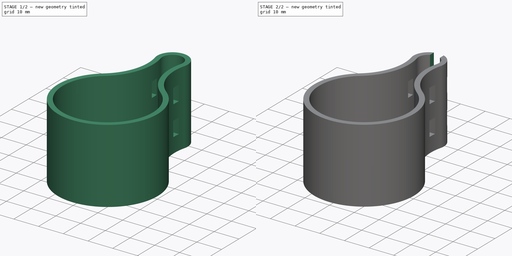
[diagram: build sequence overview — one tinted view per stage of 2, left to right]
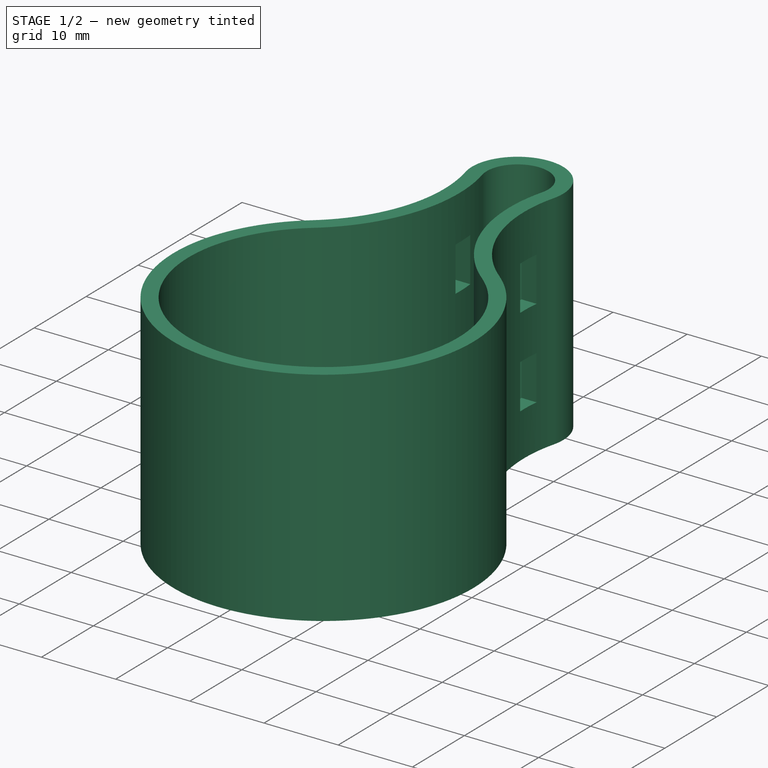
[diagram: stage 1 of 2 — iso view after this stage's code; geometry added in this stage tinted green]
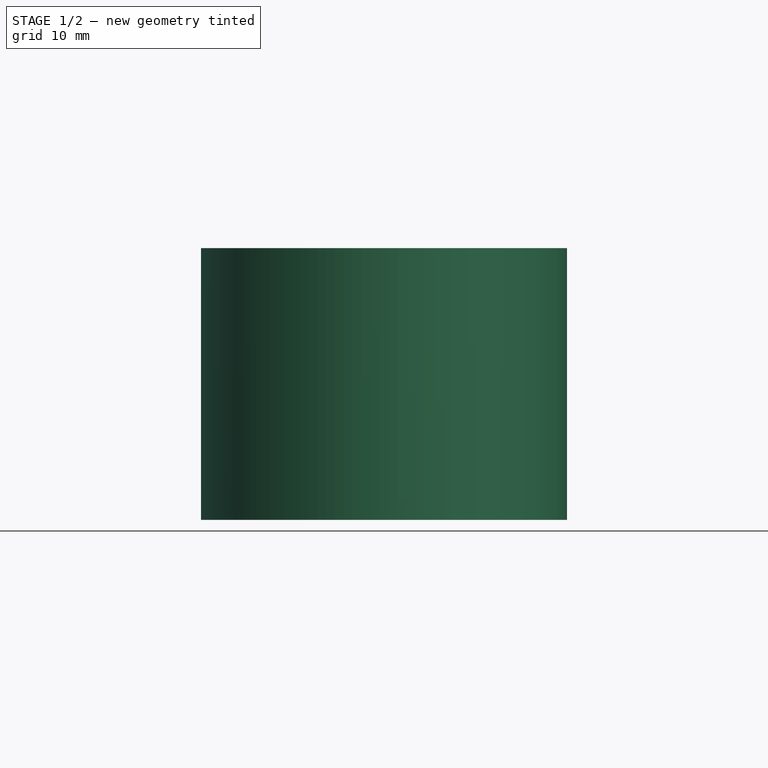
[diagram: stage 1 of 2 — front view after this stage's code; geometry added in this stage tinted green]
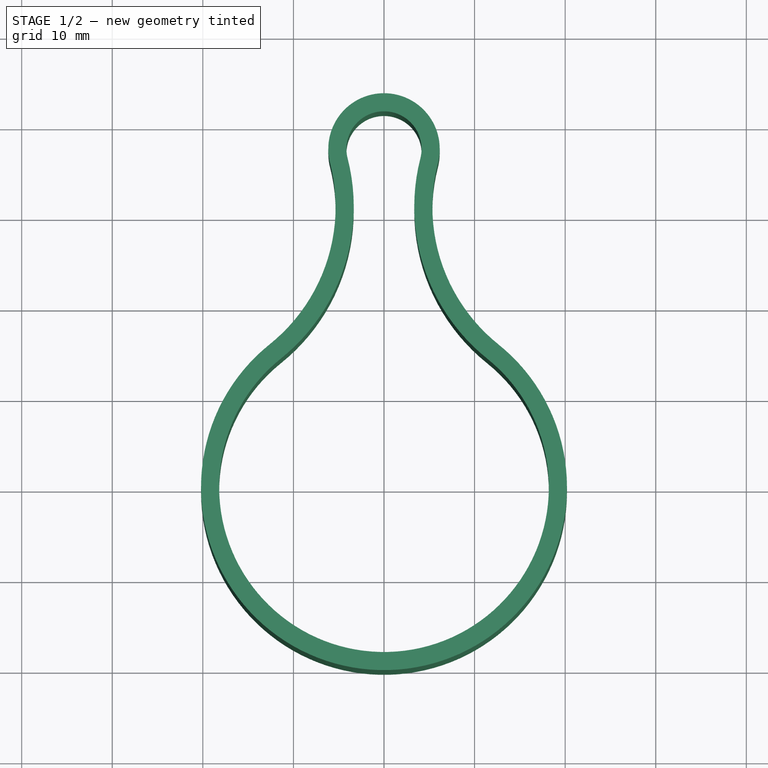
[diagram: stage 1 of 2 — top view after this stage's code; geometry added in this stage tinted green]
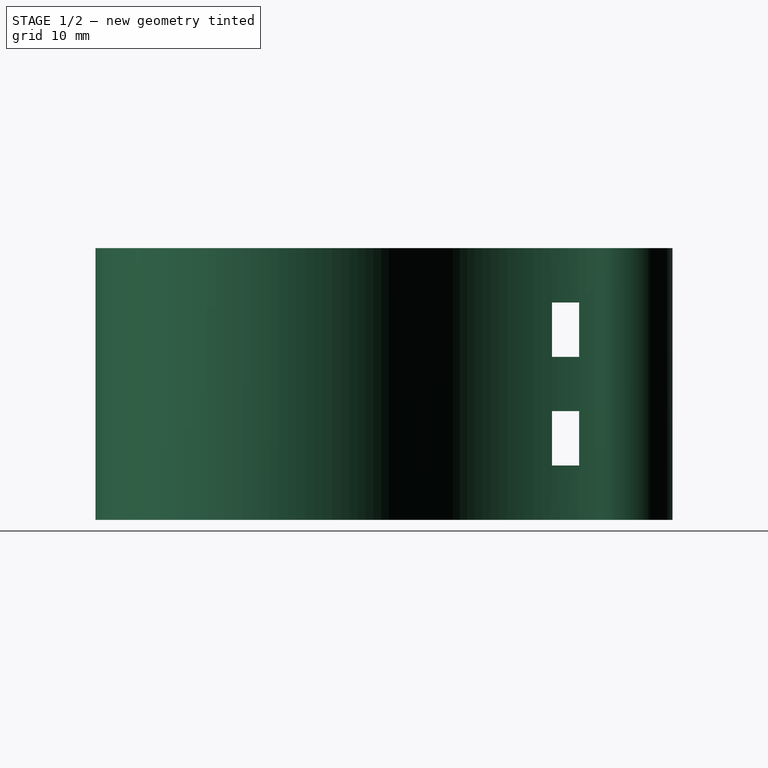
[diagram: stage 1 of 2 — right view after this stage's code; geometry added in this stage tinted green]
FCSTD DOCUMENT  (FreeCAD 0.20R29603 (Git))
Label: shield
License: All rights reserved
LicenseURL: http://en.wikipedia.org/wiki/All_rights_reserved
objects: Sketcher::SketchObject×4, PartDesign::Pocket×3, PartDesign::Pad×1, PartDesign::Plane×1, PartDesign::Body×1
note: 14 computed .brp shape members not serialized (recipe doc carries the construction recipe); baked Part::Feature solids carry a one-line shape summary decoded from their .brp

FEATURE [Sketcher::SketchObject] Sketch
  FullyConstrained = false
  MapMode = 5
  Support = -> [XY_Plane]
  sketch-geometry (23):
    g0: ArcOfCircle CenterX=0 CenterY=37.35 CenterZ=0 NormalX=0 NormalY=0 NormalZ=1 AngleXU=0 Radius=4.15 StartAngle=6.03115 EndAngle=9.67681
    g1: ArcOfCircle CenterX=0 CenterY=0 CenterZ=0 NormalX=0 NormalY=0 NormalZ=1 AngleXU=0 Radius=18.2 StartAngle=2.24658 EndAngle=7.1782
    g2: GeomPoint X=0 Y=5.54977 Z=0
    g3: GeomPoint X=0 Y=43.5 Z=0
    g4: GeomPoint X=0 Y=41.5 Z=0
    g5: ArcOfCircle CenterX=0 CenterY=37.35 CenterZ=0 NormalX=0 NormalY=0 NormalZ=1 AngleXU=0 Radius=6.15 StartAngle=6.03115 EndAngle=9.67681
    g6: ArcOfCircle CenterX=0 CenterY=0 CenterZ=0 NormalX=0 NormalY=0 NormalZ=1 AngleXU=0 Radius=20.2 StartAngle=2.24658 EndAngle=7.1782
    g7: GeomPoint X=0 Y=-20.2 Z=0
    g8: GeomPoint X=0 Y=-18.2 Z=0
    g9: ArcOfCircle CenterX=-24.8197 CenterY=30.9587 CenterZ=0 NormalX=0 NormalY=0 NormalZ=1 AngleXU=0 Radius=21.4794 StartAngle=5.38817 EndAngle=6.53522
    g10: ArcOfCircle CenterX=-24.8197 CenterY=30.9587 CenterZ=0 NormalX=0 NormalY=0 NormalZ=1 AngleXU=0 Radius=19.4794 StartAngle=5.38817 EndAngle=6.53522
    g11: ArcOfCircle CenterX=24.8197 CenterY=30.9587 CenterZ=0 NormalX=0 NormalY=0 NormalZ=1 AngleXU=0 Radius=21.4794 StartAngle=2.88956 EndAngle=4.03661
    g12: ArcOfCircle CenterX=24.8197 CenterY=30.9587 CenterZ=0 NormalX=0 NormalY=0 NormalZ=1 AngleXU=0 Radius=19.4794 StartAngle=2.88956 EndAngle=4.03661
    g13: LineSegment StartX=0 StartY=41.5 StartZ=0 EndX=0 EndY=43.5 EndZ=0
    g14: LineSegment StartX=0 StartY=-18.2 StartZ=0 EndX=0 EndY=-20.2 EndZ=0
    g15: Circle CenterX=0 CenterY=37.35 CenterZ=0 NormalX=0 NormalY=0 NormalZ=1 AngleXU=0 Radius=4.15
    g16: Circle CenterX=0 CenterY=37.35 CenterZ=0 NormalX=0 NormalY=0 NormalZ=1 AngleXU=0 Radius=6.15
    g17: Circle CenterX=0 CenterY=0 CenterZ=0 NormalX=0 NormalY=0 NormalZ=1 AngleXU=0 Radius=18.2
    g18: Circle CenterX=0 CenterY=0 CenterZ=0 NormalX=0 NormalY=0 NormalZ=1 AngleXU=0 Radius=20.2
    g19: GeomPoint X=0 Y=20.2 Z=0
    g20: GeomPoint X=0 Y=31.2 Z=0
    g21: LineSegment StartX=-14.3666 StartY=14.2 StartZ=0 EndX=14.3666 EndY=14.2 EndZ=0
    g22: LineSegment StartX=-5.9557 StartY=35.8163 StartZ=0 EndX=5.9557 EndY=35.8163 EndZ=0
  constraints (61):
    c: PointOnObject(g0,g-2)
    c: Coincident(g1,g-1)
    c: Diameter(g1) = 36.4
    c: Diameter(g0) = 8.3
    c: PointOnObject(g2,g-2)
    c: PointOnObject(g3,g-2)
    c: PointOnObject(g4,g0)
    c: PointOnObject(g4,g-2)
    c: Coincident(g5,g0)
    c: Coincident(g6,g1)
    c: PointOnObject(g8,g1)
    c: PointOnObject(g8,g-2)
    c: PointOnObject(g7,g6)
    c: PointOnObject(g7,g-2)
    c: DistanceY(g7,g8) = 2
    c: Coincident(g9,g1)
    c: Coincident(g9,g0)
    c: Coincident(g10,g6)
    c: Coincident(g10,g5)
    c: Coincident(g11,g1)
    c: Coincident(g11,g0)
    c: Coincident(g12,g5)
    c: Coincident(g12,g6)
    c: PointOnObject(g3,g5)
    c: Coincident(g13,g4)
    c: Coincident(g13,g3)
    c: Coincident(g14,g7)
    c: Coincident(g14,g8)
    c: Equal(g14,g13)
    c: Coincident(g15,g0)
    c: Coincident(g16,g0)
    c: Coincident(g17,g1)
    c: Coincident(g18,g1)
    c: Equal(g17,g1)
    c: Equal(g18,g6)
    c: Equal(g15,g0)
    c: Equal(g16,g5)
    c: Tangent(g18,g10)
    c: Tangent(g10,g16)
    c: Tangent(g9,g15)
    c: Tangent(g9,g17)
    c: Tangent(g12,g16)
    c: Tangent(g12,g18)
    c: Tangent(g11,g17)
    c: Tangent(g11,g15)
    c: PointOnObject(g19,g-2)
    c: PointOnObject(g19,g18)
    c: PointOnObject(g20,g-2)
    c: PointOnObject(g20,g16)
    c: DistanceY(g19,g20) = 11
    c: Equal(g9,g11)
    c: Equal(g10,g12)
    c: Distance(g5,g0) = 2
    c: Horizontal(g21)
    c: PointOnObject(g1,g21)
    c: PointOnObject(g21,g6)
    c: PointOnObject(g21,g6)
    c: Horizontal(g22)
    c: Coincident(g22,g5)
    c: PointOnObject(g22,g5)
    c: DistanceY(g21,g19) = 6
FEATURE [PartDesign::Pad] Pad
  Direction = (0,0,1)
  Length = 30
  Length2 = 10
  Profile = -> Sketch
  ReferenceAxis = -> Sketch [N_Axis]
  Type = 0
FEATURE [PartDesign::Plane] DatumPlane
  Length = 67.246
  MapMode = 45
  Placement = pos=(-1.1243e-06,28.9018,15) rot=(0.707107,0,0.707107;3.14159rad)
  ResizeMode = 0
  Support = -> [Pad]
  Width = 80.4117
FEATURE [Sketcher::SketchObject] Sketch001
  ExternalGeometry = -> [Pad]
  FullyConstrained = true
  MapMode = 5
  Placement = pos=(-1.1243e-06,28.9018,15) rot=(0.707107,0,0.707107;3.14159rad)
  Support = -> [DatumPlane]
  sketch-geometry (13):
    g0: LineSegment StartX=-15 StartY=-12.5982 StartZ=0 EndX=-15 EndY=-4.29815 EndZ=0
    g1: LineSegment StartX=-15 StartY=-4.29815 StartZ=0 EndX=15 EndY=-4.29815 EndZ=0
    g2: LineSegment StartX=-9 StartY=-4.29815 StartZ=0 EndX=-3 EndY=-4.29815 EndZ=0
    g3: LineSegment StartX=-3 StartY=-4.29815 StartZ=0 EndX=-3 EndY=-1.29815 EndZ=0
    g4: LineSegment StartX=-3 StartY=-1.29815 StartZ=0 EndX=-9 EndY=-1.29815 EndZ=0
    g5: LineSegment StartX=-9 StartY=-1.29815 StartZ=0 EndX=-9 EndY=-4.29815 EndZ=0
    g6: LineSegment StartX=3 StartY=-4.29815 StartZ=0 EndX=9 EndY=-4.29815 EndZ=0
    g7: LineSegment StartX=9 StartY=-4.29815 StartZ=0 EndX=9 EndY=-1.29815 EndZ=0
    g8: LineSegment StartX=9 StartY=-1.29815 StartZ=0 EndX=3 EndY=-1.29815 EndZ=0
    g9: LineSegment StartX=3 StartY=-1.29815 StartZ=0 EndX=3 EndY=-4.29815 EndZ=0
    g10: LineSegment StartX=-3 StartY=-1.29815 StartZ=0 EndX=3 EndY=-1.29815 EndZ=0
    g11: LineSegment StartX=-9 StartY=-1.29815 StartZ=0 EndX=-15 EndY=-1.29815 EndZ=0
    g12: LineSegment StartX=9 StartY=-1.29815 StartZ=0 EndX=15 EndY=-1.29815 EndZ=0
  constraints (39):
    c: Coincident(g0,g-4)
    c: DistanceY(g0,g0) = 8.3
    c: Vertical(g0)
    c: Coincident(g1,g0)
    c: Horizontal(g1)
    c: Vertical(g-3,g1)
    c: Coincident(g2,g3)
    c: Coincident(g3,g4)
    c: Coincident(g4,g5)
    c: Coincident(g5,g2)
    c: Horizontal(g2)
    c: Horizontal(g4)
    c: Vertical(g3)
    c: Vertical(g5)
    c: PointOnObject(g2,g1)
    c: Coincident(g6,g7)
    c: Coincident(g7,g8)
    c: Coincident(g8,g9)
    c: Coincident(g9,g6)
    c: Horizontal(g6)
    c: Horizontal(g8)
    c: Vertical(g7)
    c: Vertical(g9)
    c: PointOnObject(g6,g1)
    c: Coincident(g10,g3)
    c: Coincident(g11,g4)
    c: Coincident(g12,g7)
    c: Vertical(g11,g0)
    c: Coincident(g8,g10)
    c: Vertical(g12,g1)
    c: Horizontal(g12)
    c: Horizontal(g11)
    c: Equal(g11,g10)
    c: Equal(g10,g12)
    c: Equal(g4,g8)
    c: Horizontal(g10)
    c: DistanceY(g7,g7) = 3
    c: DistanceX(g8,g8) = 6
    c: DistanceX(g-4,g-3) = 30
FEATURE [PartDesign::Pocket] Pocket
  BaseFeature = -> Pad
  Direction = (-1,-2.56615e-08,3e-16)
  Length = 13.2
  Length2 = 13.2
  Profile = -> Sketch001
  ReferenceAxis = -> Sketch001 [N_Axis]
  Type = 4
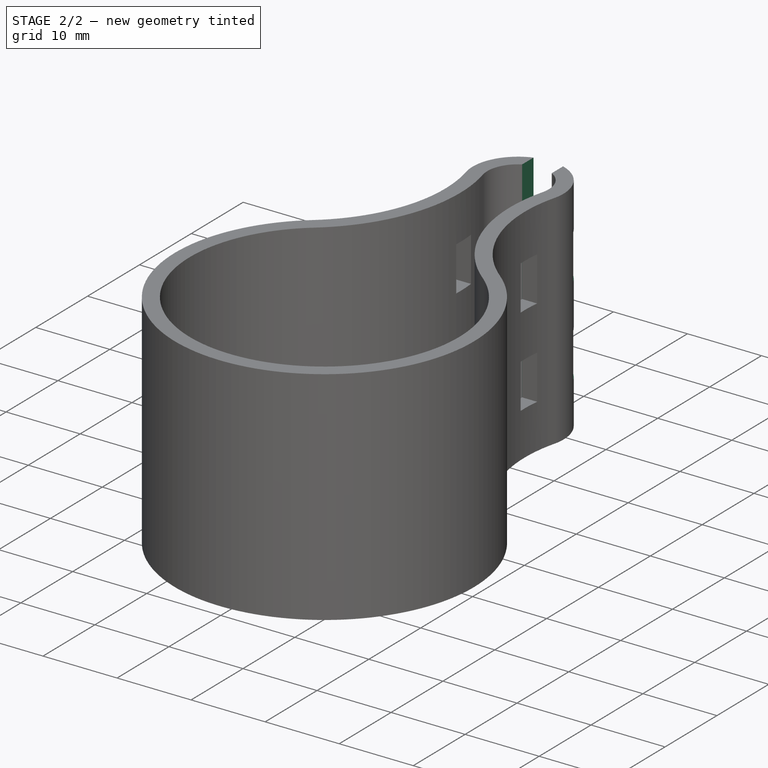
[diagram: stage 2 of 2 — iso view after this stage's code; geometry added in this stage tinted green]
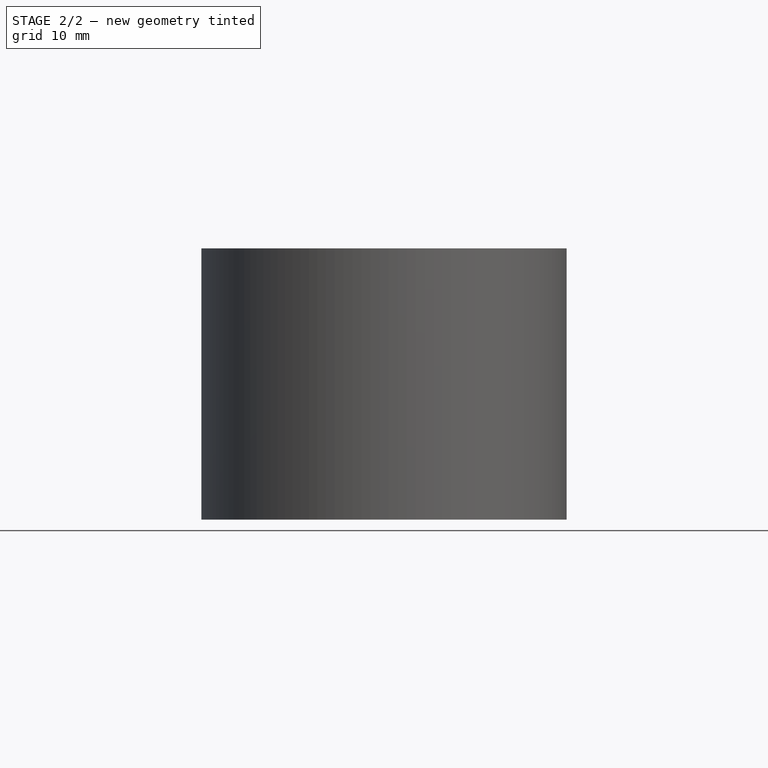
[diagram: stage 2 of 2 — front view after this stage's code; geometry added in this stage tinted green]
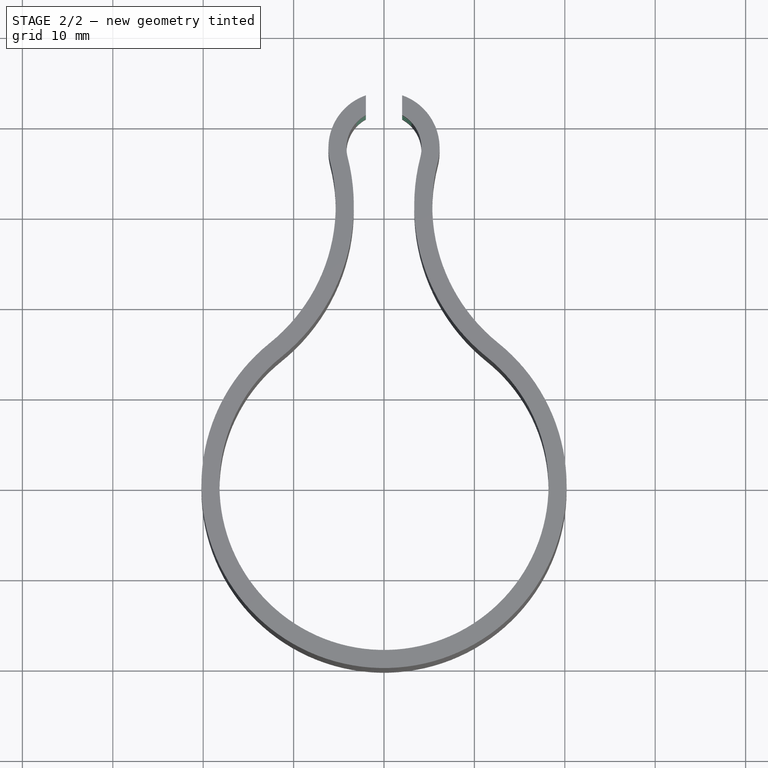
[diagram: stage 2 of 2 — top view after this stage's code; geometry added in this stage tinted green]
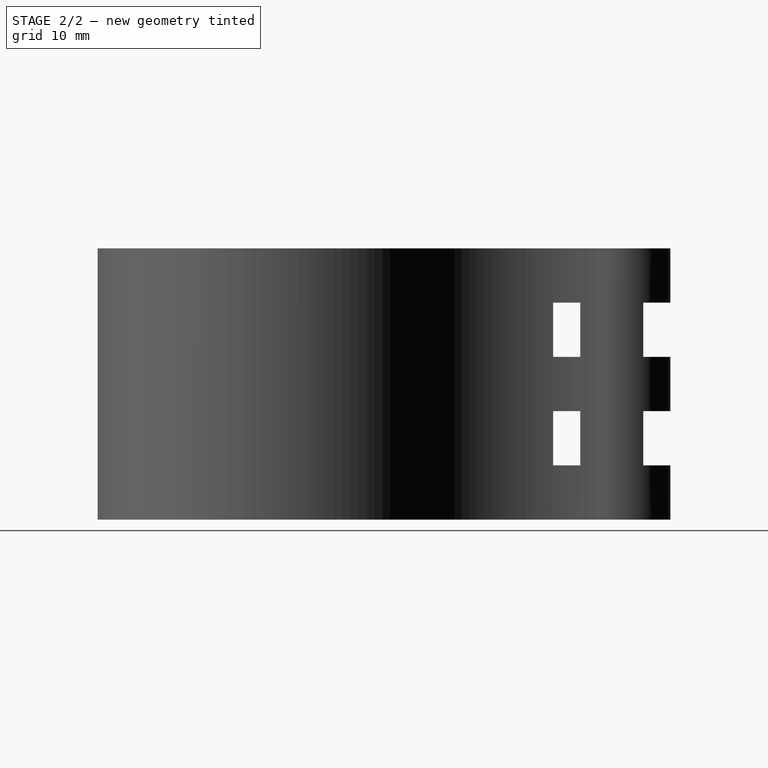
[diagram: stage 2 of 2 — right view after this stage's code; geometry added in this stage tinted green]
FEATURE [Sketcher::SketchObject] Sketch002
  ExternalGeometry = -> [Pocket]
  FullyConstrained = true
  MapMode = 5
  Placement = pos=(0,0,30) rot=(0,0,1;0rad)
  Support = -> [Pocket]
  sketch-geometry (6):
    g0: LineSegment StartX=-2 StartY=44.5 StartZ=0 EndX=2 EndY=44.5 EndZ=0
    g1: LineSegment StartX=2 StartY=44.5 StartZ=0 EndX=2 EndY=40.5 EndZ=0
    g2: LineSegment StartX=2 StartY=40.5 StartZ=0 EndX=-2 EndY=40.5 EndZ=0
    g3: LineSegment StartX=-2 StartY=40.5 StartZ=0 EndX=-2 EndY=44.5 EndZ=0
    g4: LineSegment StartX=-2 StartY=42.5 StartZ=0 EndX=2 EndY=42.5 EndZ=0
    g5: LineSegment StartX=0 StartY=43.5 StartZ=0 EndX=0 EndY=41.5 EndZ=0
  constraints (18):
    c: Coincident(g0,g1)
    c: Coincident(g1,g2)
    c: Coincident(g2,g3)
    c: Coincident(g3,g0)
    c: Horizontal(g2)
    c: Vertical(g1)
    c: Vertical(g3)
    c: Symmetric(g0,g0,g-2)
    c: PointOnObject(g4,g3)
    c: PointOnObject(g4,g1)
    c: Equal(g3,g0)
    c: DistanceX(g0,g0) = 4
    c: Symmetric(g1,g0,g4)
    c: Diameter(g-5) = 36.4
    c: PointOnObject(g5,g-3)
    c: PointOnObject(g5,g-2)
    c: PointOnObject(g5,g-4)
    c: Symmetric(g5,g5,g4)
FEATURE [PartDesign::Pocket] Pocket001
  BaseFeature = -> Pocket
  Direction = (0,0,-1)
  Length = 5
  Length2 = 5
  Profile = -> Sketch002
  ReferenceAxis = -> Sketch002 [N_Axis]
  Type = 1
FEATURE [Sketcher::SketchObject] Sketch003
  ExternalGeometry = -> [Pocket001]
  FullyConstrained = true
  MapMode = 5
  Placement = pos=(-1.1243e-06,28.9018,15) rot=(0.707107,0,0.707107;3.14159rad)
  Support = -> [DatumPlane]
  sketch-geometry (8):
    g0: LineSegment StartX=-9 StartY=-11.2639 StartZ=0 EndX=-3 EndY=-11.2639 EndZ=0
    g1: LineSegment StartX=-3 StartY=-11.2639 StartZ=0 EndX=-3 EndY=-14.2639 EndZ=0
    g2: LineSegment StartX=-3 StartY=-14.2639 StartZ=0 EndX=-9 EndY=-14.2639 EndZ=0
    g3: LineSegment StartX=-9 StartY=-14.2639 StartZ=0 EndX=-9 EndY=-11.2639 EndZ=0
    g4: LineSegment StartX=3 StartY=-11.2639 StartZ=0 EndX=9 EndY=-11.2639 EndZ=0
    g5: LineSegment StartX=9 StartY=-11.2639 StartZ=0 EndX=9 EndY=-14.2639 EndZ=0
    g6: LineSegment StartX=9 StartY=-14.2639 StartZ=0 EndX=3 EndY=-14.2639 EndZ=0
    g7: LineSegment StartX=3 StartY=-14.2639 StartZ=0 EndX=3 EndY=-11.2639 EndZ=0
  constraints (24):
    c: Coincident(g0,g1)
    c: Coincident(g1,g2)
    c: Coincident(g2,g3)
    c: Coincident(g3,g0)
    c: Horizontal(g0)
    c: Horizontal(g2)
    c: Vertical(g1)
    c: Vertical(g3)
    c: Coincident(g4,g5)
    c: Coincident(g5,g6)
    c: Coincident(g6,g7)
    c: Coincident(g7,g4)
    c: Horizontal(g4)
    c: Horizontal(g6)
    c: Vertical(g5)
    c: Vertical(g7)
    c: Vertical(g0,g-3)
    c: Vertical(g0,g-3)
    c: Vertical(g4,g-4)
    c: Vertical(g4,g-4)
    c: Horizontal(g4,g0)
    c: Horizontal(g1,g6)
    c: Horizontal(g2,g-6)
    c: Equal(g3,g-7)
FEATURE [PartDesign::Pocket] Pocket002
  BaseFeature = -> Pocket001
  Direction = (-1,-2.56615e-08,3e-16)
  Length = 13.5
  Length2 = 13.5
  Profile = -> Sketch003
  ReferenceAxis = -> Sketch003 [N_Axis]
  Type = 4
FEATURE [PartDesign::Body] Body
  Group = -> [Sketch,Pad,DatumPlane,Sketch001,Pocket,Sketch002,Pocket001,Sketch003,Pocket002]
  Origin = -> Origin
  Tip = -> Pocket002
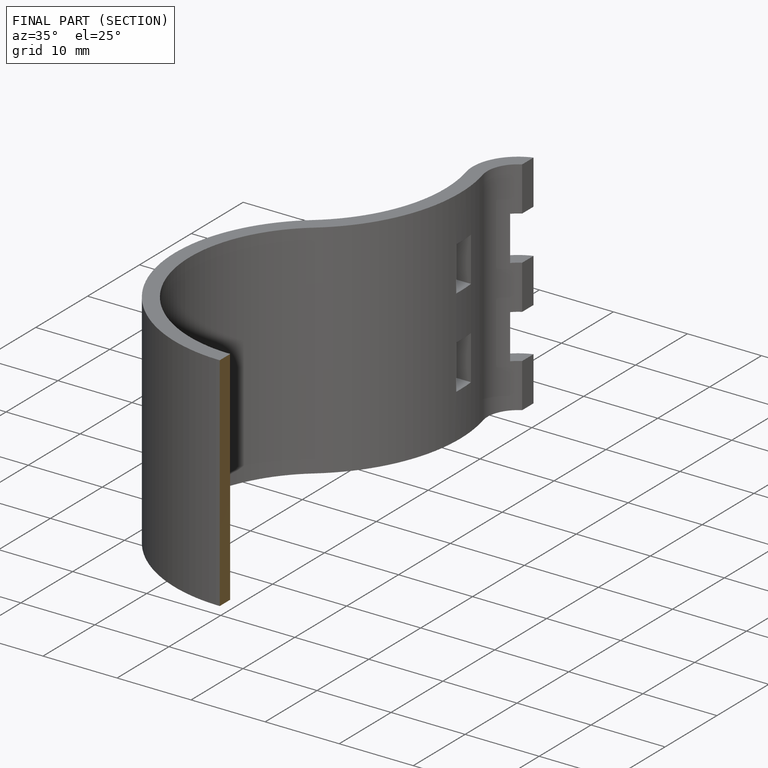
[diagram: finished part — half-section view (interior)]
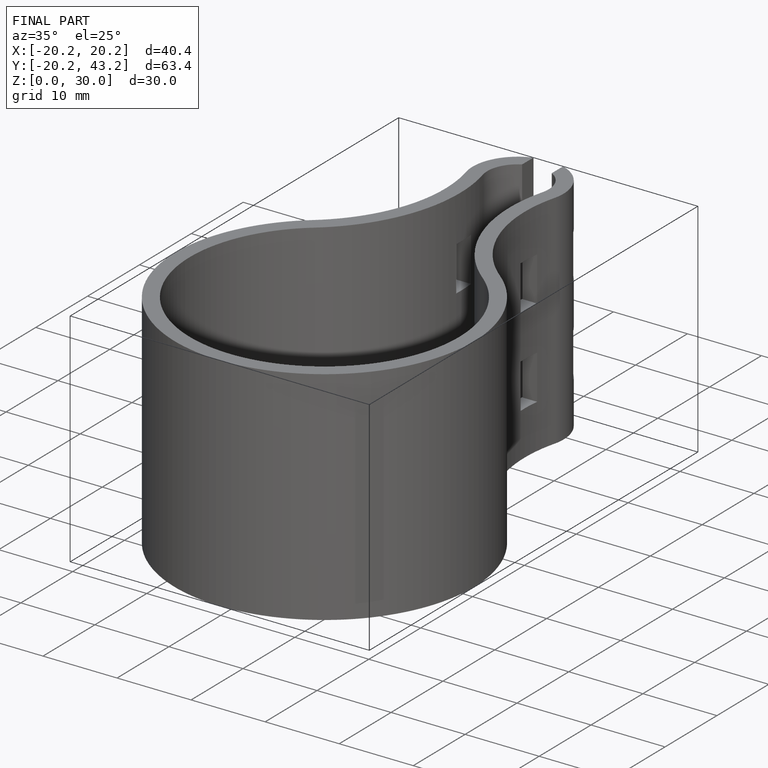
[diagram: finished part — iso view with bounding-box wireframe]
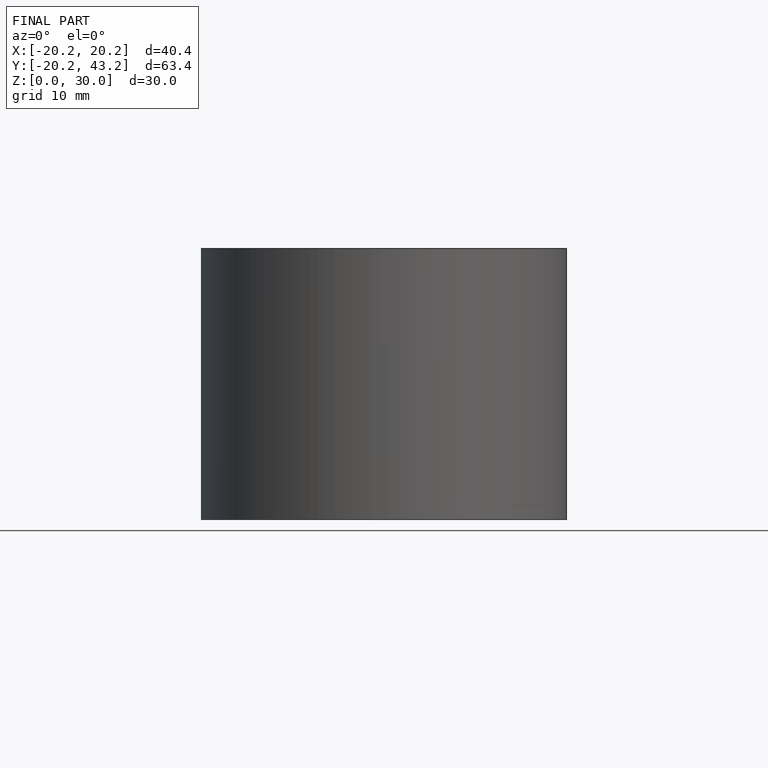
[diagram: finished part — front view with bounding-box wireframe]
